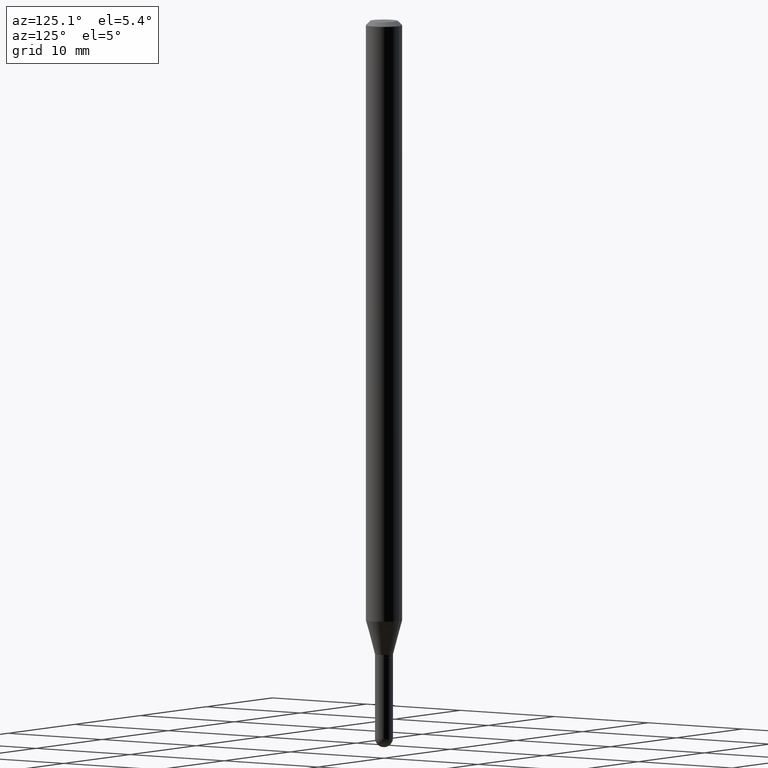
[diagram: clean part render]
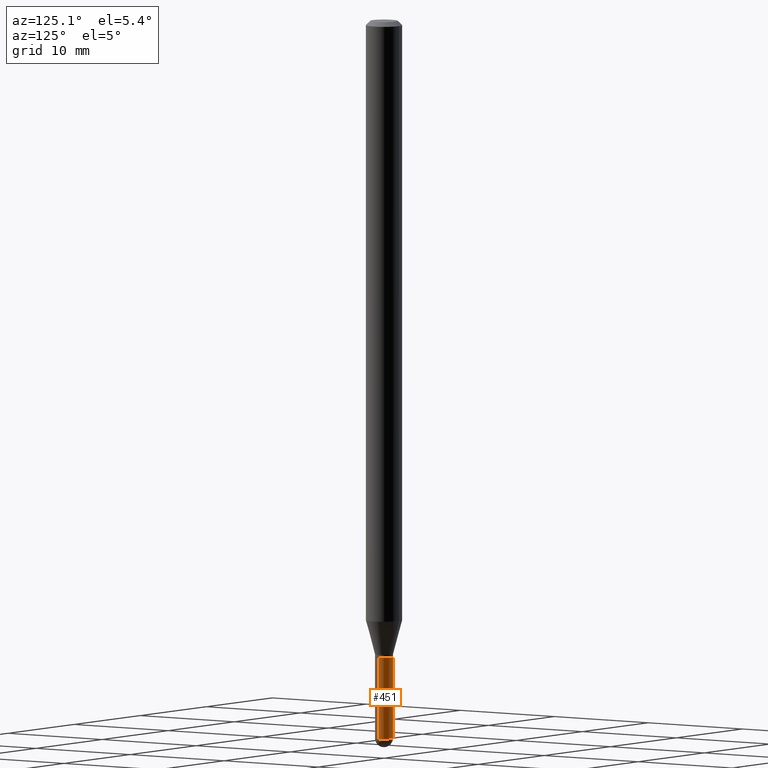
[diagram: same view with one face highlighted and labeled with its STEP entity id]
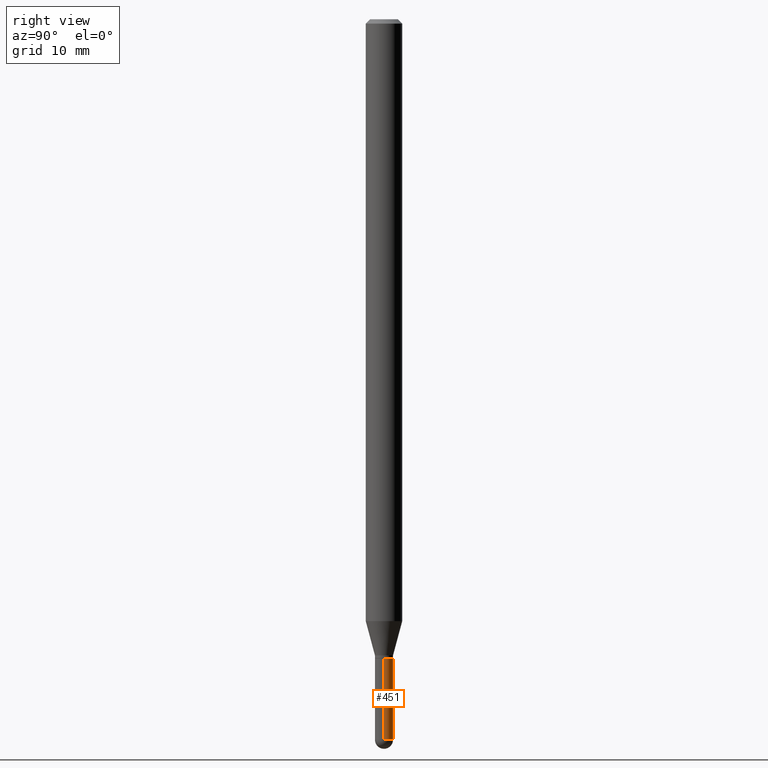
[diagram: same view with one face highlighted and labeled with its STEP entity id]
A machine part, auxiliary view. The second image highlights one B-rep face of the part: STEP entity #451.
A second angle (right view) of the same face is appended — the face is thin or edge-on in the first view.
In plain terms, the highlighted cylindrical surface (edge-blend (fillet) strip) has radius 0.7874 mm, axis along (-0, 0, 1).
Its self-contained STEP definition (entity closure, byte-faithful):
#11 = EDGE_LOOP ( 'NONE', ( #498, #368, #67, #395, #334 ) ) ;
#23 = EDGE_CURVE ( 'NONE', #309, #37, #227, .T. ) ;
#37 = VERTEX_POINT ( 'NONE', #300 ) ;
#47 = AXIS2_PLACEMENT_3D ( 'NONE', #320, #128, #407 ) ;
#48 = CIRCLE ( 'NONE', #441, 0.03099999999999999978 ) ;
#63 = VERTEX_POINT ( 'NONE', #179 ) ;
#67 = ORIENTED_EDGE ( 'NONE', *, *, #294, .F. ) ;
#73 = CARTESIAN_POINT ( 'NONE',  ( 0.03099999999999999978, -2.164718430082742572E-16, 1.511614800496739984E-30 ) ) ;
#75 = CARTESIAN_POINT ( 'NONE',  ( -0.03099999999999999978, -7.913137530749477307E-15, -2.469000000000000306 ) ) ;
#93 = CARTESIAN_POINT ( 'NONE',  ( 0.03099999999999999978, -8.349877621843383680E-15, -2.469000000000000306 ) ) ;
#107 = FACE_OUTER_BOUND ( 'NONE', #11, .T. ) ;
#128 = DIRECTION ( 'NONE',  ( -2.445468806185136597E-29, 3.491481338843145583E-15, 1.000000000000000000 ) ) ;
#147 = CARTESIAN_POINT ( 'NONE',  ( 2.164718430083341860E-16, 0.03099999999999131575, -2.469000000000000306 ) ) ;
#148 = DIRECTION ( 'NONE',  ( 1.000000000000000000, -6.982962677686266711E-15, 4.876176775795935232E-29 ) ) ;
#152 = VERTEX_POINT ( 'NONE', #147 ) ;
#159 = CIRCLE ( 'NONE', #427, 0.03099999999999999978 ) ;
#169 = EDGE_CURVE ( 'NONE', #397, #63, #204, .T. ) ;
#175 = CARTESIAN_POINT ( 'NONE',  ( 5.355576685545449192E-29, -7.646344132066488554E-15, -2.189999999999999947 ) ) ;
#179 = CARTESIAN_POINT ( 'NONE',  ( -0.03099999999999999978, -7.913137530749477307E-15, -2.189999999999999947 ) ) ;
#180 = VECTOR ( 'NONE', #258, 39.37007874015748143 ) ;
#183 = CYLINDRICAL_SURFACE ( 'NONE', #312, 0.03099999999999999978 ) ;
#204 = LINE ( 'NONE', #446, #298 ) ;
#227 = LINE ( 'NONE', #73, #180 ) ;
#258 = DIRECTION ( 'NONE',  ( -2.445468806185136877E-29, 3.491481338843145188E-15, 1.000000000000000000 ) ) ;
#279 = DIRECTION ( 'NONE',  ( -2.445468806185136597E-29, 3.491481338843145583E-15, 1.000000000000000000 ) ) ;
#281 = DIRECTION ( 'NONE',  ( -2.445468806185136877E-29, 3.491481338843145188E-15, 1.000000000000000000 ) ) ;
#289 = DIRECTION ( 'NONE',  ( 1.000000000000000000, -6.982962677686270655E-15, 0.000000000000000000 ) ) ;
#293 = DIRECTION ( 'NONE',  ( -2.445468806185136597E-29, 3.491481338843145583E-15, 1.000000000000000000 ) ) ;
#294 = EDGE_CURVE ( 'NONE', #37, #63, #48, .T. ) ;
#298 = VECTOR ( 'NONE', #281, 39.37007874015748143 ) ;
#300 = CARTESIAN_POINT ( 'NONE',  ( 0.03099999999999999978, -7.862815975074762885E-15, -2.189999999999999947 ) ) ;
#309 = VERTEX_POINT ( 'NONE', #93 ) ;
#312 = AXIS2_PLACEMENT_3D ( 'NONE', #338, #504, #148 ) ;
#316 = EDGE_CURVE ( 'NONE', #152, #397, #493, .T. ) ;
#320 = CARTESIAN_POINT ( 'NONE',  ( 6.037862482471103495E-29, -8.620467425603728566E-15, -2.469000000000000306 ) ) ;
#334 = ORIENTED_EDGE ( 'NONE', *, *, #474, .T. ) ;
#338 = CARTESIAN_POINT ( 'NONE',  ( 0.000000000000000000, 0.000000000000000000, 0.000000000000000000 ) ) ;
#368 = ORIENTED_EDGE ( 'NONE', *, *, #169, .T. ) ;
#374 = CARTESIAN_POINT ( 'NONE',  ( 6.037862482471103495E-29, -8.620467425603728566E-15, -2.469000000000000306 ) ) ;
#377 = DIRECTION ( 'NONE',  ( 1.000000000000000000, -6.982962677686270655E-15, 0.000000000000000000 ) ) ;
#395 = ORIENTED_EDGE ( 'NONE', *, *, #23, .F. ) ;
#397 = VERTEX_POINT ( 'NONE', #75 ) ;
#407 = DIRECTION ( 'NONE',  ( 1.000000000000000000, -6.982962677686270655E-15, 0.000000000000000000 ) ) ;
#427 = AXIS2_PLACEMENT_3D ( 'NONE', #374, #279, #289 ) ;
#441 = AXIS2_PLACEMENT_3D ( 'NONE', #175, #293, #377 ) ;
#446 = CARTESIAN_POINT ( 'NONE',  ( -0.03099999999999999978, 2.202682480856310560E-16, -1.524869877979020612E-30 ) ) ;
#451 = ADVANCED_FACE ( 'NONE', ( #107 ), #183, .T. ) ;
#474 = EDGE_CURVE ( 'NONE', #309, #152, #159, .T. ) ;
#493 = CIRCLE ( 'NONE', #47, 0.03099999999999999978 ) ;
#498 = ORIENTED_EDGE ( 'NONE', *, *, #316, .T. ) ;
#504 = DIRECTION ( 'NONE',  ( -2.445468806185136597E-29, 3.491481338843145583E-15, 1.000000000000000000 ) ) ;